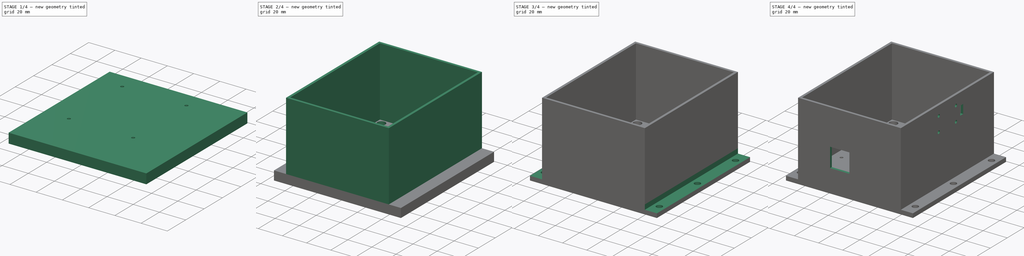
[diagram: build sequence overview — one tinted view per stage of 4, left to right]
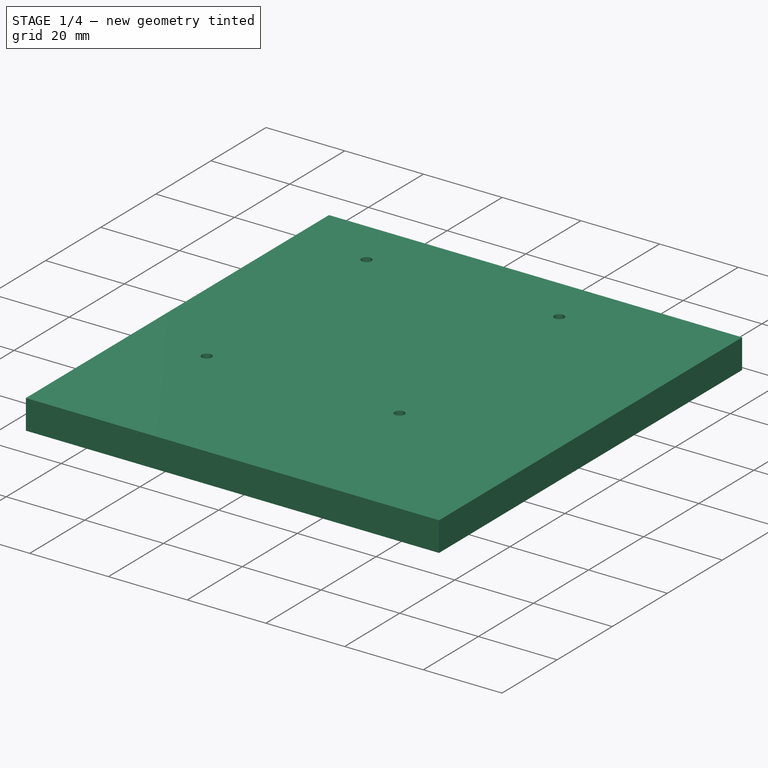
[diagram: stage 1 of 4 — iso view after this stage's code; geometry added in this stage tinted green]
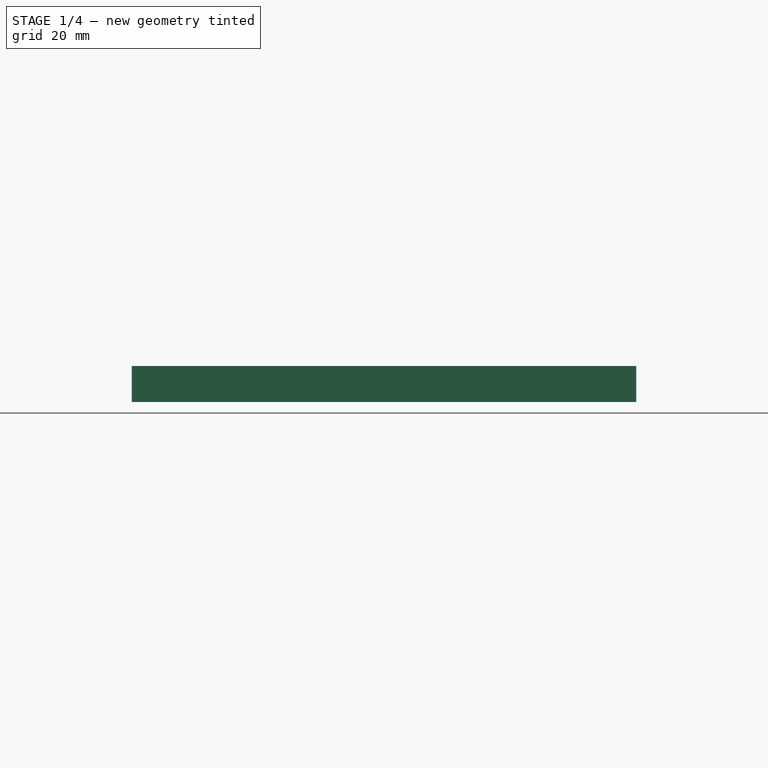
[diagram: stage 1 of 4 — front view after this stage's code; geometry added in this stage tinted green]
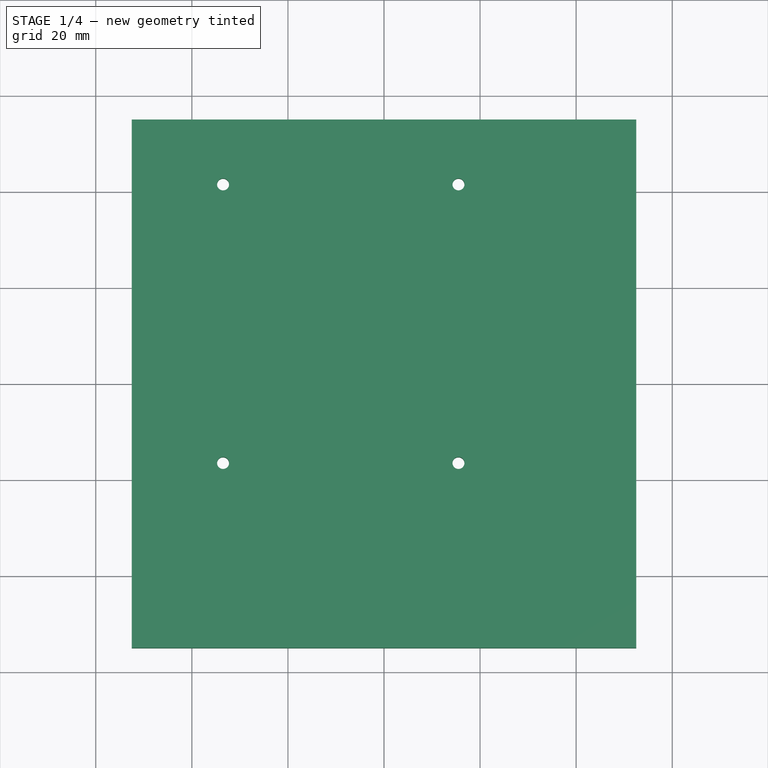
[diagram: stage 1 of 4 — top view after this stage's code; geometry added in this stage tinted green]
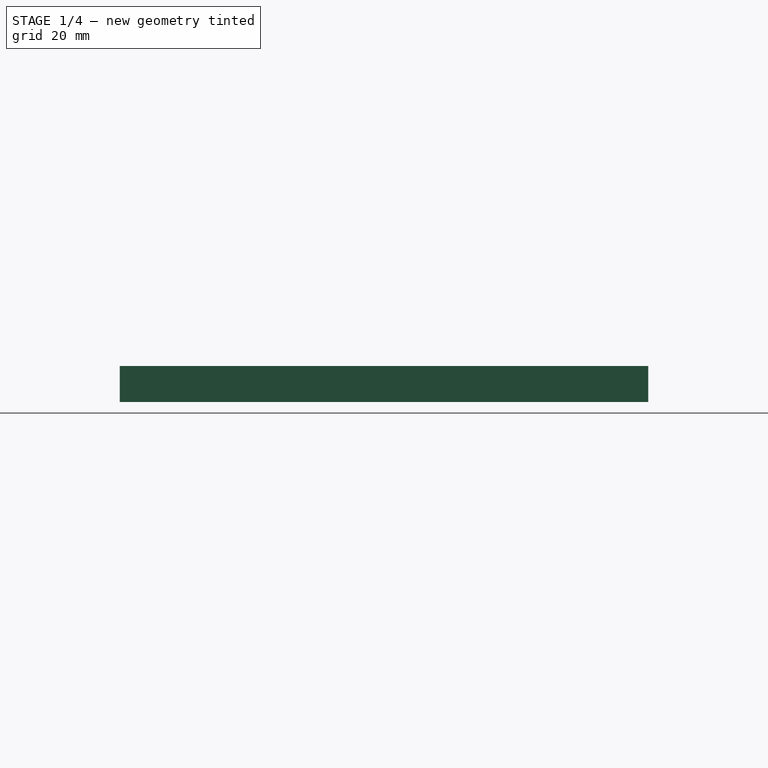
[diagram: stage 1 of 4 — right view after this stage's code; geometry added in this stage tinted green]
FCSTD DOCUMENT  (FreeCAD 0.19R24291 (Git))
Label: boitier_raspberry_ardusimple
License: All rights reserved
LicenseURL: http://en.wikipedia.org/wiki/All_rights_reserved
objects: Sketcher::SketchObject×10, PartDesign::Pocket×8, PartDesign::Pad×2, PartDesign::Body×1
note: 31 computed .brp shape members not serialized (recipe doc carries the construction recipe); baked Part::Feature solids carry a one-line shape summary decoded from their .brp

FEATURE [Sketcher::SketchObject] Sketch
  FullyConstrained = true
  MapMode = 5
  Support = -> [XY_Plane]
  sketch-geometry (4):
    g0: LineSegment StartX=-52.5 StartY=55 StartZ=0 EndX=52.5 EndY=55 EndZ=0
    g1: LineSegment StartX=52.5 StartY=55 StartZ=0 EndX=52.5 EndY=-55 EndZ=0
    g2: LineSegment StartX=52.5 StartY=-55 StartZ=0 EndX=-52.5 EndY=-55 EndZ=0
    g3: LineSegment StartX=-52.5 StartY=-55 StartZ=0 EndX=-52.5 EndY=55 EndZ=0
  constraints (12):
    c: Coincident(g0,g1)
    c: Coincident(g1,g2)
    c: Coincident(g2,g3)
    c: Coincident(g3,g0)
    c: Horizontal(g0)
    c: Horizontal(g2)
    c: Vertical(g1)
    c: Vertical(g3)
    c: DistanceY(g1,g1) = 110
    c: DistanceX(g0,g0) = 105
    c: DistanceX(g0,g-1) = 52.5
    c: DistanceY(g-1,g0) = 55
FEATURE [PartDesign::Pad] Pad  label="fond"
  Direction = (1,1,1)
  Length = 7.5
  Length2 = 100
  Profile = -> Sketch
  Type = 0
FEATURE [Sketcher::SketchObject] Sketch001
  ExternalGeometry = -> [Pad]
  FullyConstrained = true
  MapMode = 5
  Placement = pos=(0,0,7.5) rot=(0,0,1;0rad)
  Support = -> [Pad]
  sketch-geometry (4):
    g0: Circle CenterX=-33.5 CenterY=41.5 CenterZ=0 NormalX=0 NormalY=0 NormalZ=1 AngleXU=0 Radius=1.25
    g1: Circle CenterX=15.5 CenterY=41.5 CenterZ=0 NormalX=0 NormalY=0 NormalZ=1 AngleXU=0 Radius=1.25
    g2: Circle CenterX=-33.5 CenterY=-16.5 CenterZ=0 NormalX=0 NormalY=0 NormalZ=1 AngleXU=0 Radius=1.25
    g3: Circle CenterX=15.5 CenterY=-16.5 CenterZ=0 NormalX=0 NormalY=0 NormalZ=1 AngleXU=0 Radius=1.25
  constraints (12):
    c: Diameter(g0) = 2.5
    c: Diameter(g1) = 2.5
    c: Diameter(g2) = 2.5
    c: Diameter(g3) = 2.5
    c: DistanceX(g-3,g0) = 19
    c: DistanceX(g-3,g2) = 19
    c: DistanceX(g0,g1) = 49
    c: DistanceX(g2,g3) = 49
    c: DistanceY(g2,g3) = 0
    c: DistanceY(g1,g0) = 0
    c: DistanceY(g0,g-3) = 13.5
    c: DistanceY(g2,g0) = 58
FEATURE [PartDesign::Pocket] Pocket  label="trou_raspberry_1"
  BaseFeature = -> Pad
  Length = 8
  Length2 = 100
  Profile = -> Sketch001
  Type = 0
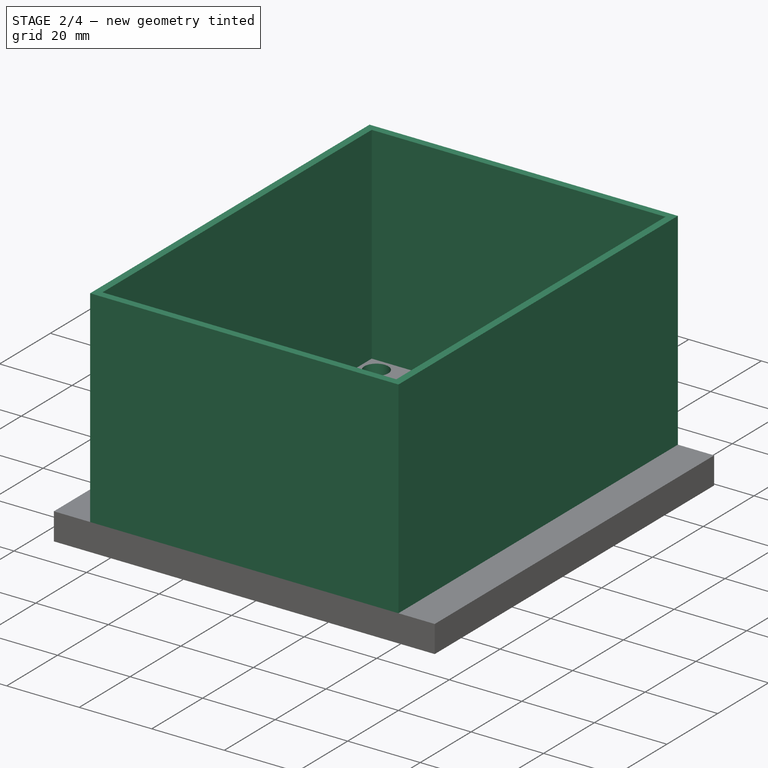
[diagram: stage 2 of 4 — iso view after this stage's code; geometry added in this stage tinted green]
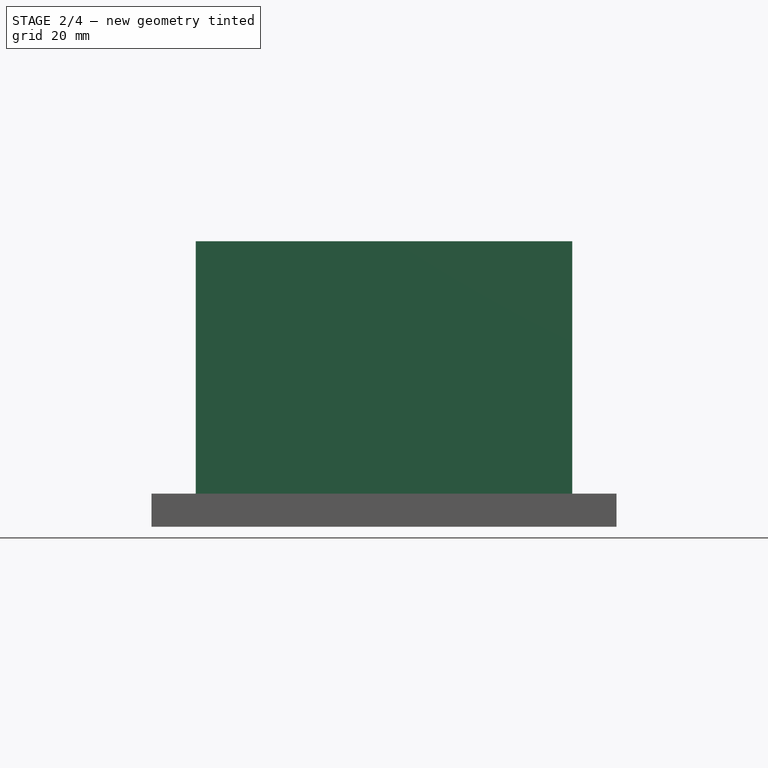
[diagram: stage 2 of 4 — front view after this stage's code; geometry added in this stage tinted green]
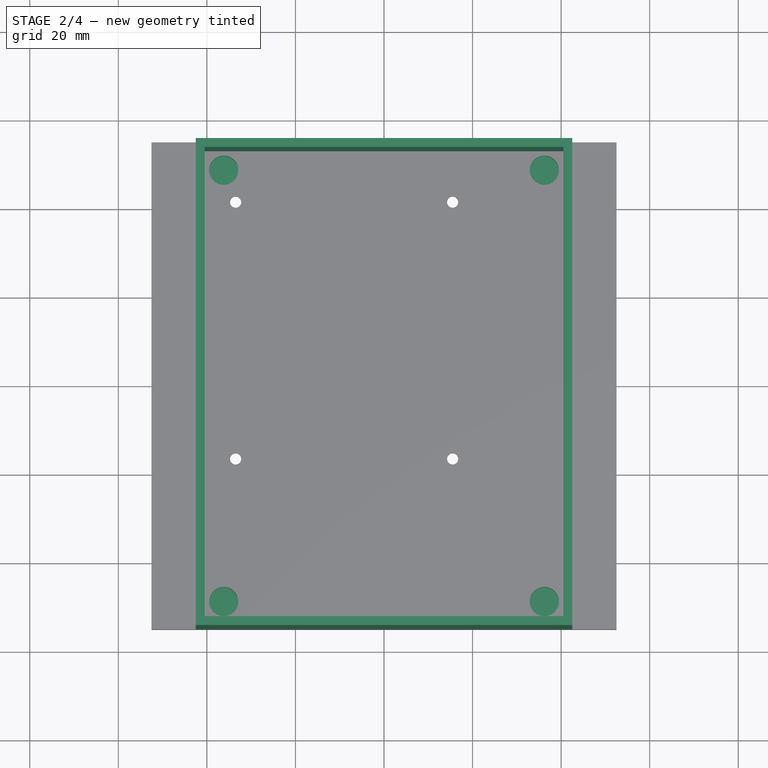
[diagram: stage 2 of 4 — top view after this stage's code; geometry added in this stage tinted green]
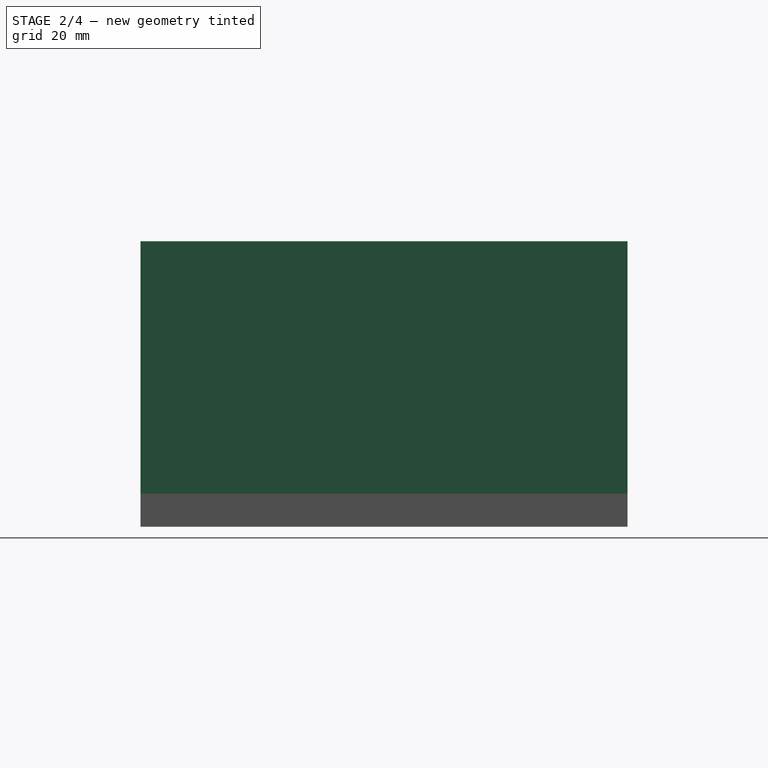
[diagram: stage 2 of 4 — right view after this stage's code; geometry added in this stage tinted green]
FEATURE [Sketcher::SketchObject] Sketch002
  ExternalGeometry = -> [Pocket]
  FullyConstrained = true
  MapMode = 5
  Placement = pos=(0,0,0) rot=(1,0,0;3.14159rad)
  Support = -> [Pocket]
  sketch-geometry (4):
    g0: Circle CenterX=-33.5 CenterY=16.5 CenterZ=0 NormalX=0 NormalY=0 NormalZ=1 AngleXU=0 Radius=3
    g1: Circle CenterX=15.5 CenterY=16.5 CenterZ=0 NormalX=0 NormalY=0 NormalZ=1 AngleXU=0 Radius=3
    g2: Circle CenterX=-33.5 CenterY=-41.5 CenterZ=0 NormalX=0 NormalY=0 NormalZ=1 AngleXU=0 Radius=3
    g3: Circle CenterX=15.5 CenterY=-41.5 CenterZ=0 NormalX=0 NormalY=0 NormalZ=1 AngleXU=0 Radius=3
  constraints (8):
    c: Coincident(g0,g-3)
    c: Coincident(g1,g-4)
    c: Coincident(g2,g-5)
    c: Coincident(g3,g-6)
    c: Diameter(g0) = 6
    c: Diameter(g1) = 6
    c: Diameter(g2) = 6
    c: Diameter(g3) = 6
FEATURE [PartDesign::Pocket] Pocket001  label="trou_raspberry_2"
  BaseFeature = -> Pocket
  Length = 6
  Length2 = 100
  Profile = -> Sketch002
  Type = 0
FEATURE [Sketcher::SketchObject] Sketch003
  ExternalGeometry = -> [Pocket001]
  FullyConstrained = true
  MapMode = 5
  Placement = pos=(0,0,7.5) rot=(0,0,1;0rad)
  Support = -> [Pocket001]
  sketch-geometry (8):
    g0: LineSegment StartX=-42.5 StartY=55 StartZ=0 EndX=42.5 EndY=55 EndZ=0
    g1: LineSegment StartX=42.5 StartY=55 StartZ=0 EndX=42.5 EndY=-55 EndZ=0
    g2: LineSegment StartX=42.5 StartY=-55 StartZ=0 EndX=-42.5 EndY=-55 EndZ=0
    g3: LineSegment StartX=-42.5 StartY=-55 StartZ=0 EndX=-42.5 EndY=55 EndZ=0
    g4: LineSegment StartX=-40.5 StartY=53 StartZ=0 EndX=40.5 EndY=53 EndZ=0
    g5: LineSegment StartX=40.5 StartY=53 StartZ=0 EndX=40.5 EndY=-53 EndZ=0
    g6: LineSegment StartX=40.5 StartY=-53 StartZ=0 EndX=-40.5 EndY=-53 EndZ=0
    g7: LineSegment StartX=-40.5 StartY=-53 StartZ=0 EndX=-40.5 EndY=53 EndZ=0
  constraints (24):
    c: Coincident(g0,g1)
    c: Coincident(g1,g2)
    c: Coincident(g2,g3)
    c: Coincident(g3,g0)
    c: Horizontal(g0)
    c: Horizontal(g2)
    c: Vertical(g1)
    c: Vertical(g3)
    c: DistanceX(g-3,g0) = 10
    c: DistanceX(g0,g-4) = 10
    c: DistanceY(g0,g-3) = 0
    c: DistanceY(g-3,g2) = 0
    c: Coincident(g4,g5)
    c: Coincident(g5,g6)
    c: Coincident(g6,g7)
    c: Coincident(g7,g4)
    c: Horizontal(g4)
    c: Horizontal(g6)
    c: Vertical(g5)
    c: Vertical(g7)
    c: DistanceY(g4,g0) = 2
    c: DistanceY(g2,g6) = 2
    c: DistanceX(g4,g0) = 2
    c: DistanceX(g0,g4) = 2
FEATURE [PartDesign::Pad] Pad001  label="bord"
  BaseFeature = -> Pocket001
  Direction = (1,1,1)
  Length = 57
  Length2 = 100
  Profile = -> Sketch003
  Type = 0
FEATURE [Sketcher::SketchObject] Sketch004
  ExternalGeometry = -> [Pad001]
  FullyConstrained = true
  MapMode = 5
  Placement = pos=(0,0,7.5) rot=(0,0,1;0rad)
  Support = -> [Pad001]
  sketch-geometry (4):
    g0: Circle CenterX=-36.21 CenterY=48.71 CenterZ=0 NormalX=0 NormalY=0 NormalZ=1 AngleXU=0 Radius=3.29
    g1: Circle CenterX=36.21 CenterY=48.71 CenterZ=0 NormalX=0 NormalY=0 NormalZ=1 AngleXU=0 Radius=3.29
    g2: Circle CenterX=-36.21 CenterY=-48.71 CenterZ=0 NormalX=0 NormalY=0 NormalZ=1 AngleXU=0 Radius=3.29
    g3: Circle CenterX=36.21 CenterY=-48.71 CenterZ=0 NormalX=0 NormalY=0 NormalZ=1 AngleXU=0 Radius=3.29
  constraints (12):
    c: Diameter(g0) = 6.58
    c: Diameter(g1) = 6.58
    c: Diameter(g2) = 6.58
    c: Diameter(g3) = 6.58
    c: DistanceX(g-3,g0) = 4.29
    c: DistanceX(g1,g-3) = 4.29
    c: DistanceX(g3,g-4) = 4.29
    c: DistanceX(g-4,g2) = 4.29
    c: DistanceY(g-4,g2) = 4.29
    c: DistanceY(g-4,g3) = 4.29
    c: DistanceY(g1,g-3) = 4.29
    c: DistanceY(g0,g-3) = 4.29
FEATURE [PartDesign::Pocket] Pocket002  label="trou_insert"
  BaseFeature = -> Pad001
  Length = 6
  Length2 = 100
  Profile = -> Sketch004
  Type = 0
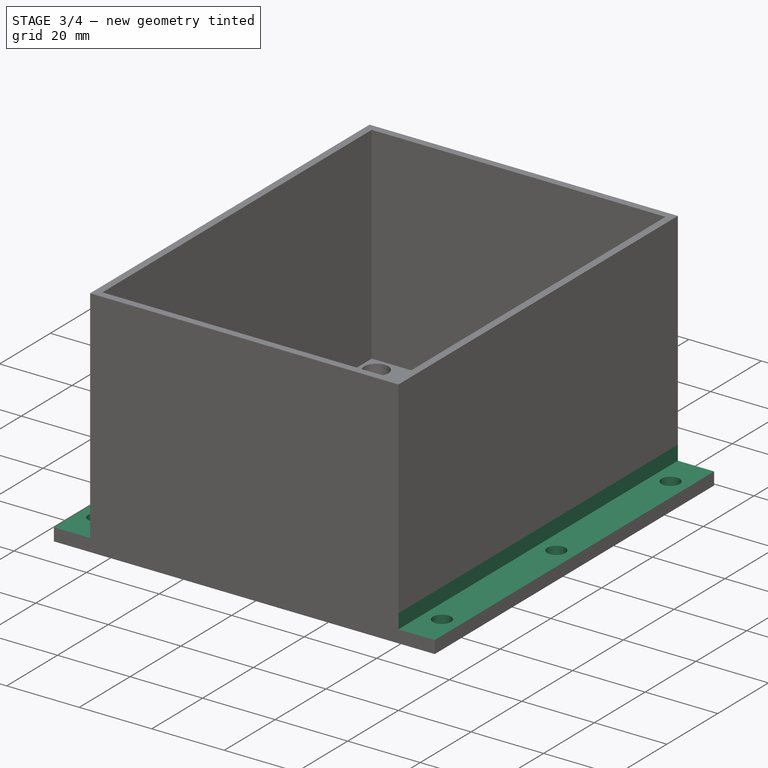
[diagram: stage 3 of 4 — iso view after this stage's code; geometry added in this stage tinted green]
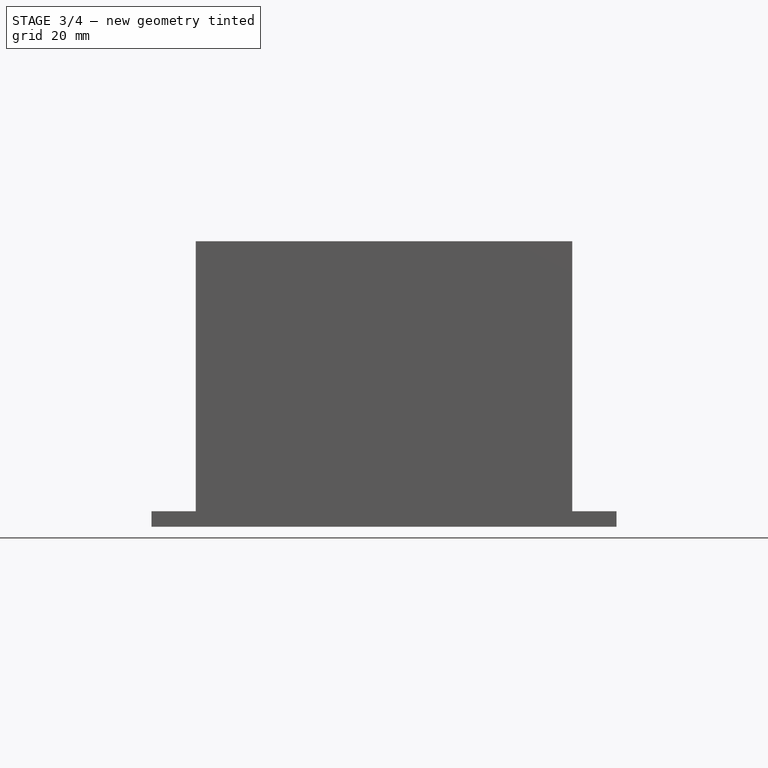
[diagram: stage 3 of 4 — front view after this stage's code; geometry added in this stage tinted green]
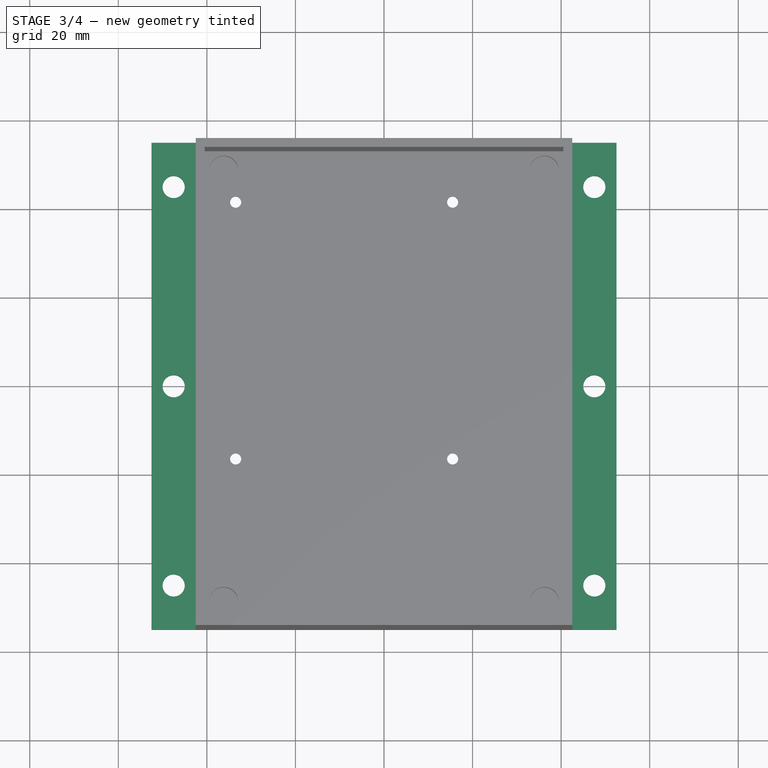
[diagram: stage 3 of 4 — top view after this stage's code; geometry added in this stage tinted green]
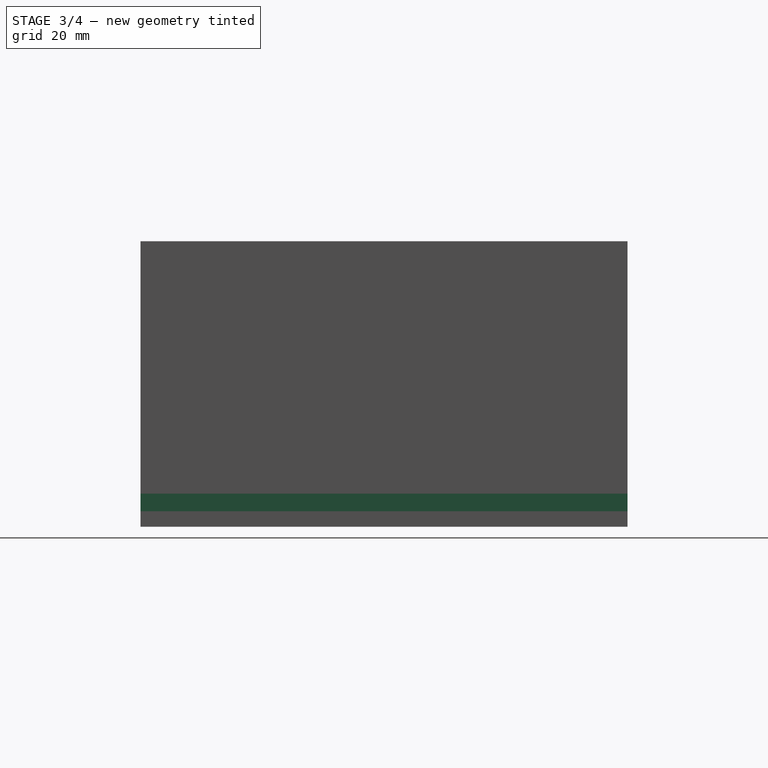
[diagram: stage 3 of 4 — right view after this stage's code; geometry added in this stage tinted green]
FEATURE [Sketcher::SketchObject] Sketch005
  ExternalGeometry = -> [Pocket002]
  FullyConstrained = true
  MapMode = 5
  Placement = pos=(0,0,7.5) rot=(0,0,1;0rad)
  Support = -> [Pocket002]
  sketch-geometry (4):
    g0: LineSegment StartX=-52.5 StartY=55 StartZ=0 EndX=-42.5 EndY=55 EndZ=0
    g1: LineSegment StartX=-42.5 StartY=55 StartZ=0 EndX=-42.5 EndY=-55 EndZ=0
    g2: LineSegment StartX=-42.5 StartY=-55 StartZ=0 EndX=-52.5 EndY=-55 EndZ=0
    g3: LineSegment StartX=-52.5 StartY=-55 StartZ=0 EndX=-52.5 EndY=55 EndZ=0
  constraints (10):
    c: Coincident(g0,g1)
    c: Coincident(g1,g2)
    c: Coincident(g2,g3)
    c: Coincident(g3,g0)
    c: Horizontal(g0)
    c: Horizontal(g2)
    c: Vertical(g1)
    c: Vertical(g3)
    c: Coincident(g0,g-3)
    c: Coincident(g1,g-4)
FEATURE [PartDesign::Pocket] Pocket003  label="surbord_1"
  BaseFeature = -> Pocket002
  Length = 4
  Length2 = 100
  Profile = -> Sketch005
  Type = 0
FEATURE [Sketcher::SketchObject] Sketch006
  ExternalGeometry = -> [Pocket003]
  FullyConstrained = true
  MapMode = 5
  Placement = pos=(0,0,7.5) rot=(0,0,1;0rad)
  Support = -> [Pocket003]
  sketch-geometry (4):
    g0: LineSegment StartX=42.5 StartY=55 StartZ=0 EndX=52.5 EndY=55 EndZ=0
    g1: LineSegment StartX=52.5 StartY=55 StartZ=0 EndX=52.5 EndY=-55 EndZ=0
    g2: LineSegment StartX=52.5 StartY=-55 StartZ=0 EndX=42.5 EndY=-55 EndZ=0
    g3: LineSegment StartX=42.5 StartY=-55 StartZ=0 EndX=42.5 EndY=55 EndZ=0
  constraints (10):
    c: Coincident(g0,g1)
    c: Coincident(g1,g2)
    c: Coincident(g2,g3)
    c: Coincident(g3,g0)
    c: Horizontal(g0)
    c: Horizontal(g2)
    c: Vertical(g1)
    c: Vertical(g3)
    c: Coincident(g0,g-3)
    c: Coincident(g1,g-4)
FEATURE [PartDesign::Pocket] Pocket004  label="surbord_2"
  BaseFeature = -> Pocket003
  Length = 4
  Length2 = 100
  Profile = -> Sketch006
  Type = 0
FEATURE [Sketcher::SketchObject] Sketch007
  ExternalGeometry = -> [Pocket004]
  FullyConstrained = true
  MapMode = 5
  Placement = pos=(0,0,3.5) rot=(0,0,1;0rad)
  Support = -> [Pocket004]
  sketch-geometry (6):
    g0: Circle CenterX=-47.5 CenterY=45 CenterZ=0 NormalX=0 NormalY=0 NormalZ=1 AngleXU=0 Radius=2.5
    g1: Circle CenterX=-47.5 CenterY=0 CenterZ=0 NormalX=0 NormalY=0 NormalZ=1 AngleXU=0 Radius=2.5
    g2: Circle CenterX=-47.5 CenterY=-45 CenterZ=0 NormalX=0 NormalY=0 NormalZ=1 AngleXU=0 Radius=2.5
    g3: Circle CenterX=47.5 CenterY=45 CenterZ=0 NormalX=0 NormalY=0 NormalZ=1 AngleXU=0 Radius=2.5
    g4: Circle CenterX=47.5 CenterY=0 CenterZ=0 NormalX=0 NormalY=0 NormalZ=1 AngleXU=0 Radius=2.5
    g5: Circle CenterX=47.5 CenterY=-45 CenterZ=0 NormalX=0 NormalY=0 NormalZ=1 AngleXU=0 Radius=2.5
  constraints (18):
    c: Diameter(g0) = 5
    c: Diameter(g1) = 5
    c: Diameter(g2) = 5
    c: Diameter(g3) = 5
    c: Diameter(g4) = 5
    c: Diameter(g5) = 5
    c: DistanceX(g-3,g0) = 5
    c: DistanceX(g-6,g2) = 5
    c: DistanceX(g5,g-5) = 5
    c: DistanceX(g3,g-4) = 5
    c: DistanceX(g4,g-4) = 5
    c: DistanceX(g-6,g1) = 5
    c: DistanceY(g0,g-3) = 10
    c: DistanceY(g3,g-4) = 10
    c: DistanceY(g-5,g5) = 10
    c: DistanceY(g-6,g2) = 10
    c: DistanceY(g-6,g1) = 55
    c: DistanceY(g-5,g4) = 55
FEATURE [PartDesign::Pocket] Pocket005  label="trou"
  BaseFeature = -> Pocket004
  Length = 5
  Length2 = 100
  Profile = -> Sketch007
  Type = 0
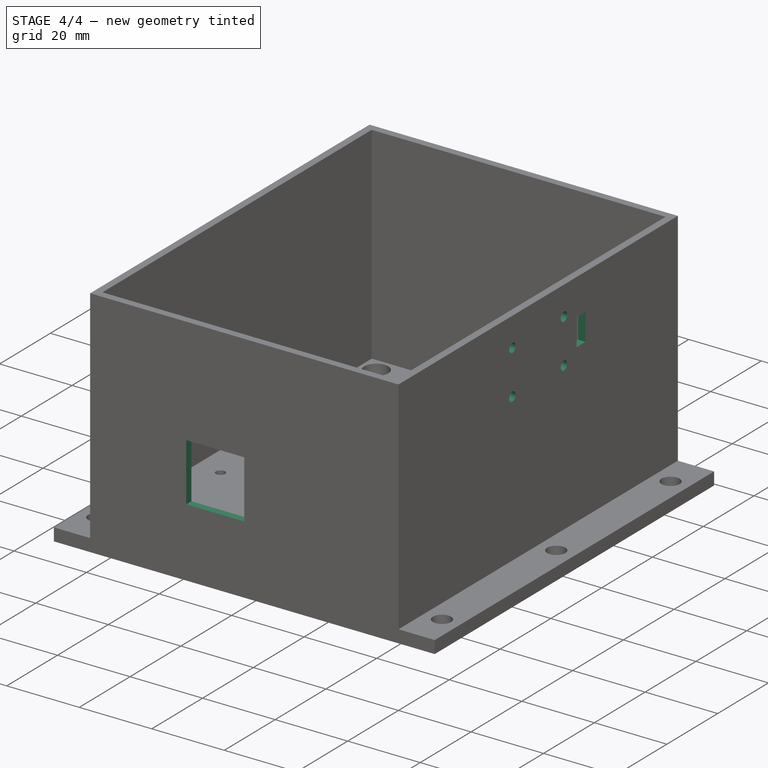
[diagram: stage 4 of 4 — iso view after this stage's code; geometry added in this stage tinted green]
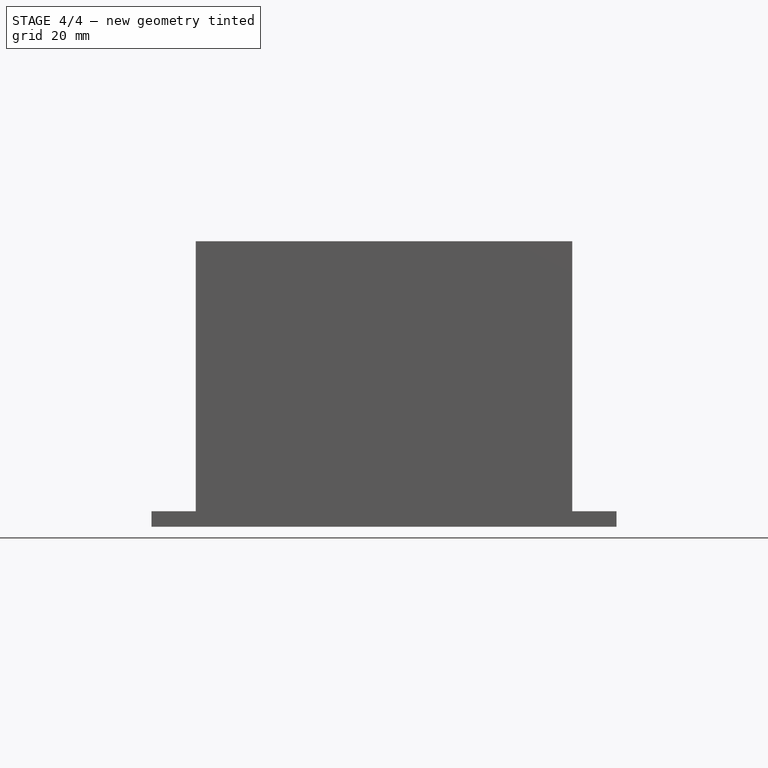
[diagram: stage 4 of 4 — front view after this stage's code; geometry added in this stage tinted green]
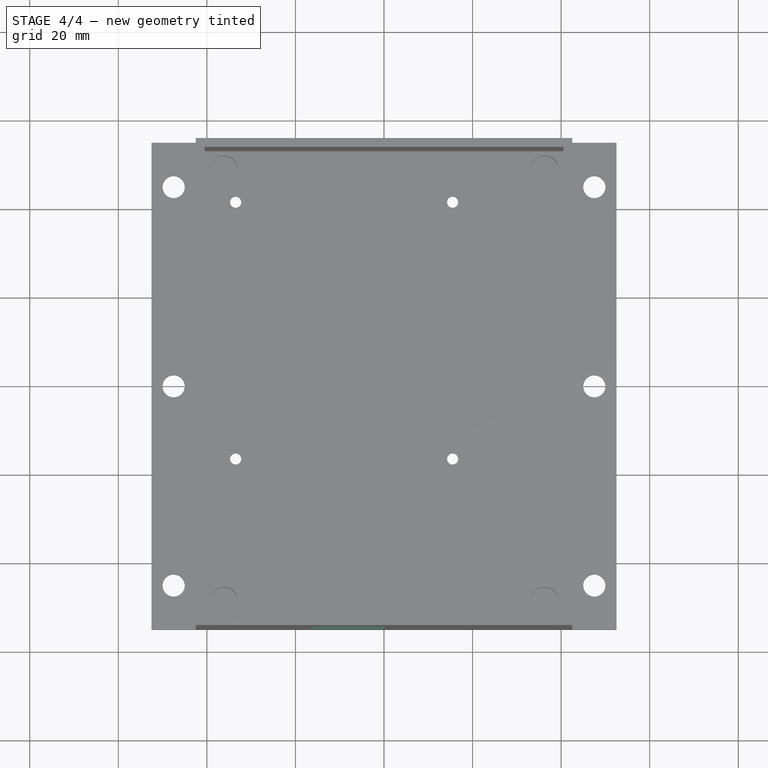
[diagram: stage 4 of 4 — top view after this stage's code; geometry added in this stage tinted green]
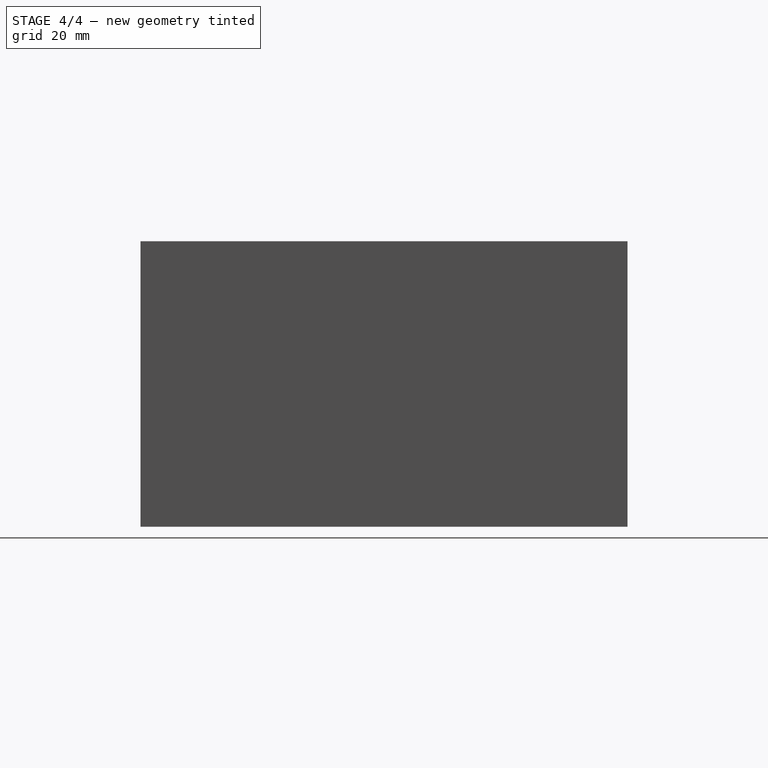
[diagram: stage 4 of 4 — right view after this stage's code; geometry added in this stage tinted green]
FEATURE [Sketcher::SketchObject] Sketch008
  ExternalGeometry = -> [Pocket005]
  FullyConstrained = true
  MapMode = 5
  Placement = pos=(0,-55,0) rot=(1,0,0;1.5708rad)
  Support = -> [Pocket005]
  sketch-geometry (4):
    g0: LineSegment StartX=-16 StartY=35 StartZ=0 EndX=0 EndY=35 EndZ=0
    g1: LineSegment StartX=0 StartY=35 StartZ=0 EndX=0 EndY=19 EndZ=0
    g2: LineSegment StartX=0 StartY=19 StartZ=0 EndX=-16 EndY=19 EndZ=0
    g3: LineSegment StartX=-16 StartY=19 StartZ=0 EndX=-16 EndY=35 EndZ=0
  constraints (12):
    c: Coincident(g0,g1)
    c: Coincident(g1,g2)
    c: Coincident(g2,g3)
    c: Coincident(g3,g0)
    c: Horizontal(g0)
    c: Horizontal(g2)
    c: Vertical(g1)
    c: Vertical(g3)
    c: DistanceX(g0,g0) = 16
    c: DistanceY(g1,g1) = 16
    c: DistanceY(g-3,g2) = 11.5
    c: DistanceX(g-3,g2) = 26.5
FEATURE [PartDesign::Pocket] Pocket006  label="USB"
  BaseFeature = -> Pocket005
  Length = 5
  Length2 = 100
  Profile = -> Sketch008
  Type = 0
FEATURE [Sketcher::SketchObject] Sketch009
  ExternalGeometry = -> [Pocket006]
  FullyConstrained = true
  MapMode = 5
  Placement = pos=(42.5,0,0) rot=(0.57735,0.57735,0.57735;2.0944rad)
  Support = -> [Pocket006]
  sketch-geometry (8):
    g0: Circle CenterX=-10.15 CenterY=56.5 CenterZ=0 NormalX=0 NormalY=0 NormalZ=1 AngleXU=0 Radius=1.25
    g1: Circle CenterX=10.15 CenterY=56.5 CenterZ=0 NormalX=0 NormalY=0 NormalZ=1 AngleXU=0 Radius=1.25
    g2: Circle CenterX=-10.15 CenterY=44.33 CenterZ=0 NormalX=0 NormalY=0 NormalZ=1 AngleXU=0 Radius=1.25
    g3: Circle CenterX=10.15 CenterY=44.33 CenterZ=0 NormalX=0 NormalY=0 NormalZ=1 AngleXU=0 Radius=1.25
    g4: LineSegment StartX=15.15 StartY=54.5 StartZ=0 EndX=18.65 EndY=54.5 EndZ=0
    g5: LineSegment StartX=18.65 StartY=54.5 StartZ=0 EndX=18.65 EndY=47 EndZ=0
    g6: LineSegment StartX=18.65 StartY=47 StartZ=0 EndX=15.15 EndY=47 EndZ=0
    g7: LineSegment StartX=15.15 StartY=47 StartZ=0 EndX=15.15 EndY=54.5 EndZ=0
  constraints (24):
    c: Diameter(g0) = 2.5
    c: Diameter(g1) = 2.5
    c: Diameter(g2) = 2.5
    c: Diameter(g3) = 2.5
    c: DistanceY(g2,g0) = 12.17
    c: DistanceY(g1,g0) = 0
    c: DistanceY(g2,g3) = 0
    c: DistanceX(g2,g0) = 0
    c: DistanceX(g0,g1) = 20.3
    c: DistanceX(g3,g1) = 0
    c: DistanceX(g0,g-1) = 10.15
    c: Coincident(g4,g5)
    c: Coincident(g5,g6)
    c: Coincident(g6,g7)
    c: Coincident(g7,g4)
    c: Horizontal(g4)
    c: Horizontal(g6)
    c: Vertical(g5)
    c: Vertical(g7)
    c: DistanceY(g5,g5) = 7.5
    c: DistanceX(g4,g4) = 3.5
    c: DistanceX(g1,g4) = 5
    c: DistanceY(g4,g1) = 2
    c: DistanceY(g0,g-4) = 8
FEATURE [PartDesign::Pocket] Pocket007  label="capteur_temperature"
  BaseFeature = -> Pocket006
  Length = 5
  Length2 = 100
  Profile = -> Sketch009
  Type = 0
FEATURE [PartDesign::Body] Body
  Group = -> [Sketch,Pad,Sketch001,Pocket,Sketch002,Pocket001,Sketch003,Pad001,Sketch004,Pocket002,Sketch005,Pocket003,Sketch006,Pocket004,Sketch007,Pocket005,Sketch008,Pocket006,Sketch009,Pocket007]
  Origin = -> Origin
  Tip = -> Pocket007
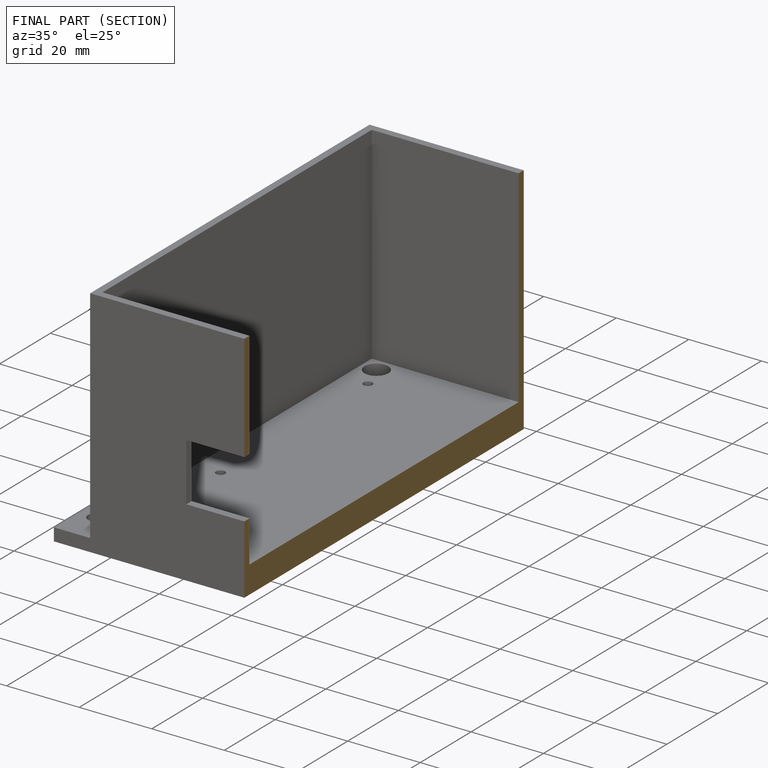
[diagram: finished part — half-section view (interior)]
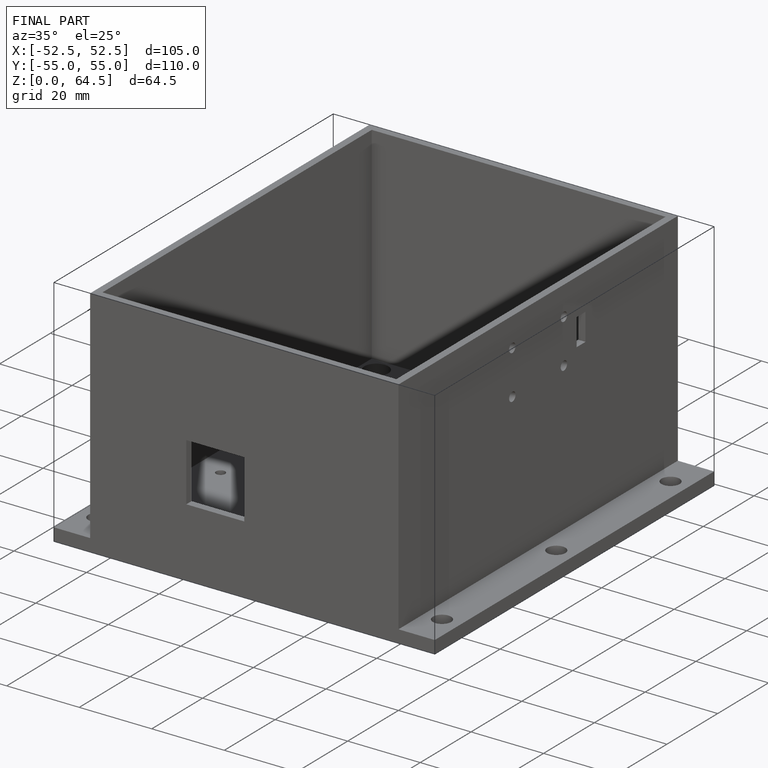
[diagram: finished part — iso view with bounding-box wireframe]
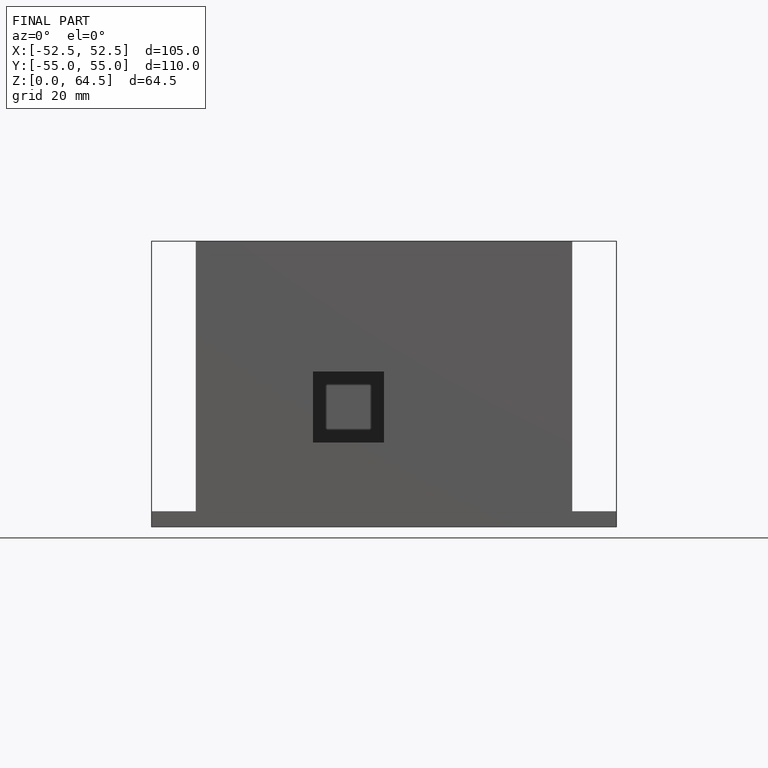
[diagram: finished part — front view with bounding-box wireframe]
